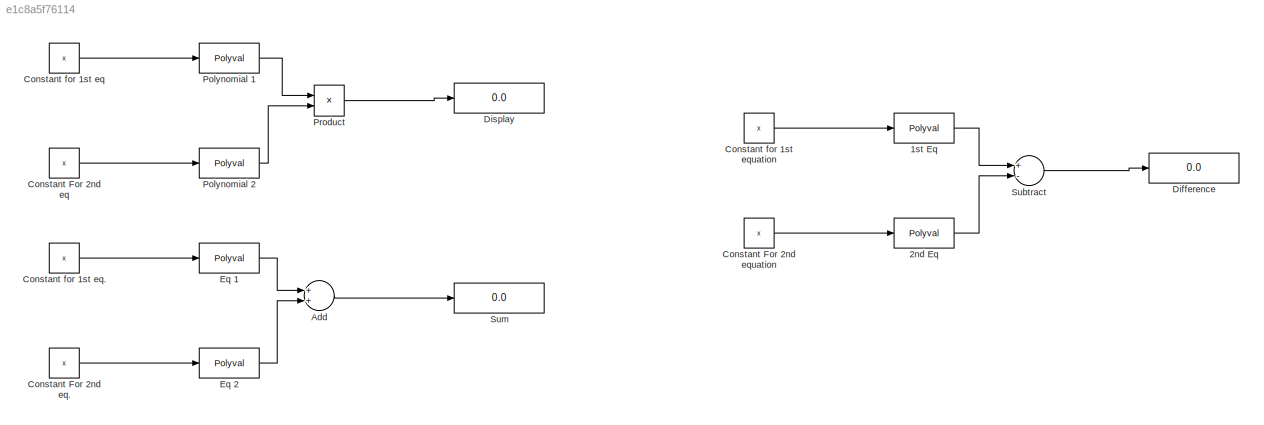
MODEL slx_e1c8a5f76114
KIND model
CONFIG AbsTol = auto
CONFIG FixedStep = auto
CONFIG MaxStep = auto
CONFIG MinStep = auto
CONFIG RelTol = 1e-3
CONFIG SampleTimeConstraint = Unconstrained
CONFIG Solver = ode45
CONFIG SolverMode = Auto
CONFIG SolverName = ode45
CONFIG StartTime = 0.0
CONFIG StopTime = 10.0
BLOCK [Polyval] 1st Eq
  Coefs = [ 1 0 4 2 7 1 ]
BLOCK [Polyval] 2nd Eq
  Coefs = [ 4 2 0 0 0]
BLOCK [Sum] Add
  InputSameDT = off
  OutDataTypeStr = Inherit: Inherit via internal rule
  Ports = [2, 1]
  SaturateOnIntegerOverflow = off
BLOCK [Constant] Constant For 2nd eq
  Value = x
BLOCK [Constant] Constant For 2nd eq.
  Value = x
BLOCK [Constant] Constant For 2nd equation
  Value = x
BLOCK [Constant] Constant for 1st eq
  Value = x
BLOCK [Constant] Constant for 1st eq.
  Value = x
BLOCK [Constant] Constant for 1st equation
  Value = x
BLOCK [Display] Difference
  Decimation = 1
  Ports = [1]
BLOCK [Display] Display
  Decimation = 1
  Ports = [1]
BLOCK [Polyval] Eq 1
  Coefs = [ 1 0 4 2 7 1 ]
BLOCK [Polyval] Eq 2
  Coefs = [ 4 2 0 0 0]
BLOCK [Polyval] Polynomial 1
  Coefs = [ 1 0 4 2 7 1 ]
BLOCK [Polyval] Polynomial 2
  Coefs = [ 4 2 0 0 0]
BLOCK [Product] Product
  InputSameDT = off
  OutDataTypeStr = Inherit: Inherit via internal rule
  Ports = [2, 1]
  RndMeth = Floor
  SaturateOnIntegerOverflow = off
BLOCK [Sum] Subtract
  InputSameDT = off
  Inputs = +-
  OutDataTypeStr = Inherit: Inherit via internal rule
  Ports = [2, 1]
  SaturateOnIntegerOverflow = off
BLOCK [Display] Sum
  Decimation = 1
  Ports = [1]
LINE 1st Eq:1 -> Subtract:1
LINE 2nd Eq:1 -> Subtract:2
LINE Add:1 -> Sum:1
LINE Constant For 2nd eq.:1 -> Eq 2:1
LINE Constant For 2nd eq:1 -> Polynomial 2:1
LINE Constant For 2nd equation:1 -> 2nd Eq:1
LINE Constant for 1st eq.:1 -> Eq 1:1
LINE Constant for 1st eq:1 -> Polynomial 1:1
LINE Constant for 1st equation:1 -> 1st Eq:1
LINE Eq 1:1 -> Add:1
LINE Eq 2:1 -> Add:2
LINE Polynomial 1:1 -> Product:1
LINE Polynomial 2:1 -> Product:2
LINE Product:1 -> Display:1
LINE Subtract:1 -> Difference:1
